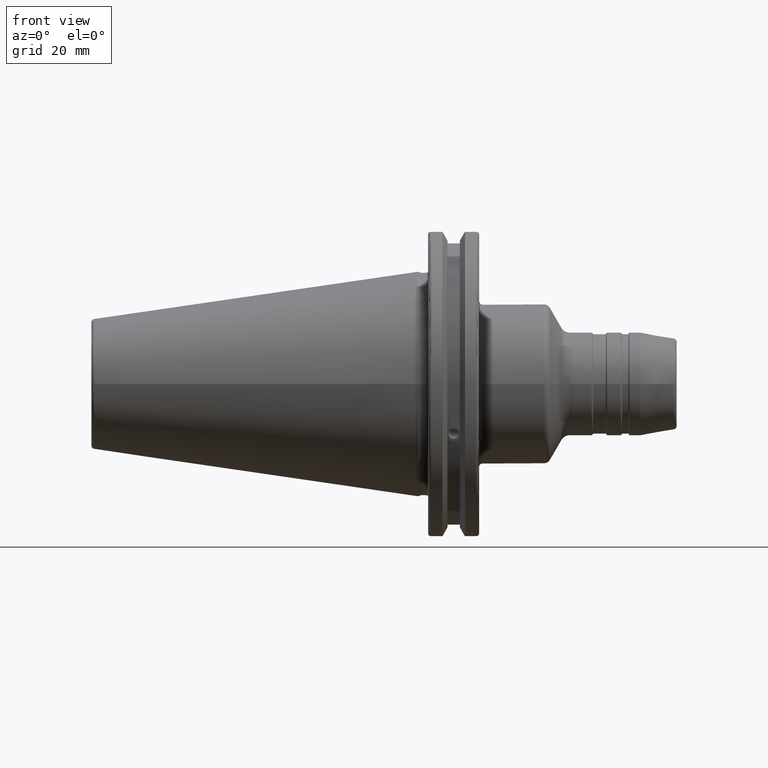
[diagram: clean part render]
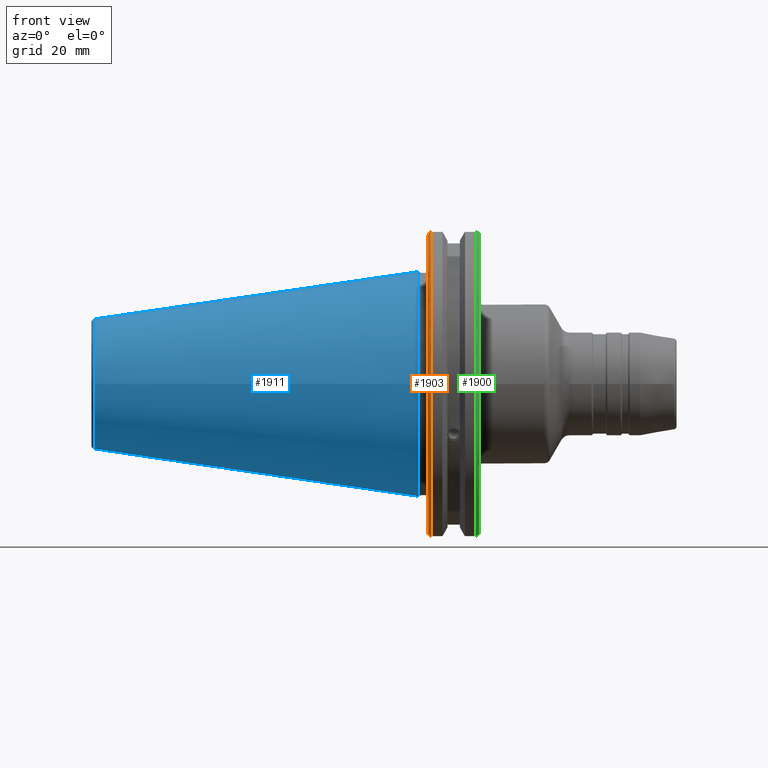
[diagram: same view with three faces highlighted in distinct colors, each labeled with its STEP entity id]
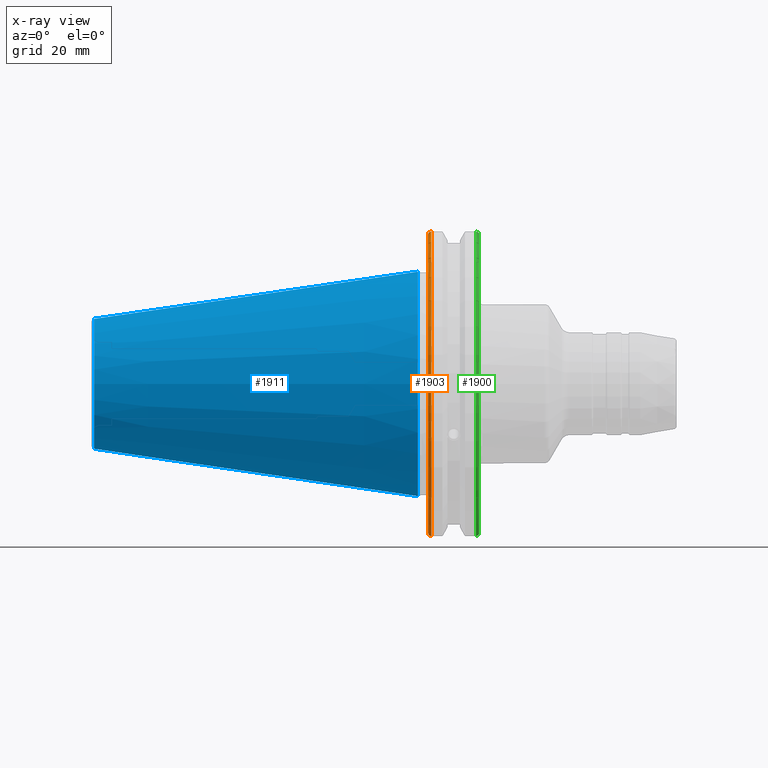
[diagram: x-ray of the same camera — body ghosted, the three highlighted faces saturated]
A machine part, front view with three faces highlighted in distinct colors.
The next image is the same camera in x-ray (body ghosted, the three faces saturated) — at least one of them is partly hidden behind the body in this view.
Their STEP definitions:

[orange] entity #1903 — the highlighted toroidal blend (fillet) surface has major radius 48.2125 mm and minor (blend) radius 1 mm.
#86=TOROIDAL_SURFACE('',#2145,48.2125,1.);
#140=B_SPLINE_CURVE_WITH_KNOTS('',3,(#3666,#3667,#3668,#3669,#3670,#3671),
 .UNSPECIFIED.,.F.,.F.,(4,2,4),(0.0976892167532858,0.112000071948292,0.150881870548587),
 .UNSPECIFIED.);
#141=B_SPLINE_CURVE_WITH_KNOTS('',3,(#3692,#3693,#3694,#3695,#3696,#3697),
 .UNSPECIFIED.,.F.,.F.,(4,2,4),(0.452859340315922,0.491741138916218,0.506051994111223),
 .UNSPECIFIED.);
#142=B_SPLINE_CURVE_WITH_KNOTS('',3,(#3701,#3702,#3703,#3704,#3705,#3706,
#3707,#3708),.UNSPECIFIED.,.F.,.F.,(4,2,2,4),(-0.104075769062722,-0.0730268503455485,
-0.034363987365627,0.),.UNSPECIFIED.);
#143=B_SPLINE_CURVE_WITH_KNOTS('',3,(#3711,#3712,#3713,#3714,#3715,#3716,
#3717,#3718),.UNSPECIFIED.,.F.,.F.,(4,2,2,4),(0.,0.0343639873656262,0.073026850345548,
0.104075769062723),.UNSPECIFIED.);
#237=FACE_OUTER_BOUND('',#362,.T.);
#362=EDGE_LOOP('',(#1633,#1634,#1635,#1636,#1637,#1638));
#714=CIRCLE('',#2133,48.2125);
#719=CIRCLE('',#2146,49.2125);
#879=VERTEX_POINT('',#3544);
#880=VERTEX_POINT('',#3545);
#905=VERTEX_POINT('',#3665);
#911=VERTEX_POINT('',#3690);
#912=VERTEX_POINT('',#3700);
#913=VERTEX_POINT('',#3709);
#1125=EDGE_CURVE('',#879,#880,#714,.T.);
#1159=EDGE_CURVE('',#905,#879,#140,.T.);
#1169=EDGE_CURVE('',#880,#911,#141,.T.);
#1171=EDGE_CURVE('',#911,#912,#142,.T.);
#1172=EDGE_CURVE('',#912,#913,#719,.T.);
#1173=EDGE_CURVE('',#913,#905,#143,.T.);
#1633=ORIENTED_EDGE('',*,*,#1171,.T.);
#1634=ORIENTED_EDGE('',*,*,#1172,.T.);
#1635=ORIENTED_EDGE('',*,*,#1173,.T.);
#1636=ORIENTED_EDGE('',*,*,#1159,.T.);
#1637=ORIENTED_EDGE('',*,*,#1125,.T.);
#1638=ORIENTED_EDGE('',*,*,#1169,.T.);
#1903=ADVANCED_FACE('',(#237),#86,.T.);
#2133=AXIS2_PLACEMENT_3D('',#3546,#2601,#2602);
#2145=AXIS2_PLACEMENT_3D('',#3699,#2652,#2653);
#2146=AXIS2_PLACEMENT_3D('',#3710,#2654,#2655);
#2601=DIRECTION('center_axis',(1.,0.,0.));
#2602=DIRECTION('ref_axis',(0.,-1.,1.60812264967664E-16));
#2652=DIRECTION('center_axis',(1.,0.,0.));
#2653=DIRECTION('ref_axis',(0.,0.,-1.));
#2654=DIRECTION('center_axis',(-1.,0.,0.));
#2655=DIRECTION('ref_axis',(0.,-1.,1.60812264967664E-16));
#3544=CARTESIAN_POINT('',(3.175,-12.95,46.4407434937254));
#3545=CARTESIAN_POINT('',(3.175,-12.95,-46.4407434937254));
#3546=CARTESIAN_POINT('Origin',(3.175,0.,0.));
#3665=CARTESIAN_POINT('',(3.31949794294344,-12.95,46.9780755322918));
#3666=CARTESIAN_POINT('Ctrl Pts',(3.31949794294344,-12.95,46.9780755322918));
#3667=CARTESIAN_POINT('Ctrl Pts',(3.29341556483839,-12.95,46.9333752207329));
#3668=CARTESIAN_POINT('Ctrl Pts',(3.27115672912336,-12.95,46.887363294568));
#3669=CARTESIAN_POINT('Ctrl Pts',(3.20453530071253,-12.95,46.7230464903732));
#3670=CARTESIAN_POINT('Ctrl Pts',(3.175,-12.95,46.5703494890597));
#3671=CARTESIAN_POINT('Ctrl Pts',(3.175,-12.95,46.4407434937254));
#3690=CARTESIAN_POINT('',(3.31949794294343,-12.95,-46.9780755322917));
#3692=CARTESIAN_POINT('Ctrl Pts',(3.175,-12.95,-46.4407434937254));
#3693=CARTESIAN_POINT('Ctrl Pts',(3.175,-12.95,-46.5703494890597));
#3694=CARTESIAN_POINT('Ctrl Pts',(3.20453530071253,-12.95,-46.7230464903732));
#3695=CARTESIAN_POINT('Ctrl Pts',(3.27115672912336,-12.95,-46.887363294568));
#3696=CARTESIAN_POINT('Ctrl Pts',(3.29341556483838,-12.95,-46.9333752207329));
#3697=CARTESIAN_POINT('Ctrl Pts',(3.31949794294343,-12.95,-46.9780755322917));
#3699=CARTESIAN_POINT('Origin',(4.175,0.,0.));
#3700=CARTESIAN_POINT('',(4.175,-13.4317035994433,-47.3440544806494));
#3701=CARTESIAN_POINT('Ctrl Pts',(3.31949794294343,-12.95,-46.9780755322917));
#3702=CARTESIAN_POINT('Ctrl Pts',(3.36785032278753,-13.0300321736484,-47.0388807469102));
#3703=CARTESIAN_POINT('Ctrl Pts',(3.43235971798504,-13.1083611826073,-47.0983919657547));
#3704=CARTESIAN_POINT('Ctrl Pts',(3.58507512107923,-13.2478194810696,-47.2043467509586));
#3705=CARTESIAN_POINT('Ctrl Pts',(3.70638116490964,-13.3242014686233,-47.2623787015413));
#3706=CARTESIAN_POINT('Ctrl Pts',(3.92661103245834,-13.4067722493645,-47.3251126473446));
#3707=CARTESIAN_POINT('Ctrl Pts',(4.06045337544791,-13.4317035994434,-47.3440544806494));
#3708=CARTESIAN_POINT('Ctrl Pts',(4.175,-13.4317035994434,-47.3440544806494));
#3709=CARTESIAN_POINT('',(4.175,-13.4317035994433,47.3440544806494));
#3710=CARTESIAN_POINT('Origin',(4.175,0.,0.));
#3711=CARTESIAN_POINT('Ctrl Pts',(4.175,-13.4317035994433,47.3440544806494));
#3712=CARTESIAN_POINT('Ctrl Pts',(4.06045337544791,-13.4317035994433,47.3440544806494));
#3713=CARTESIAN_POINT('Ctrl Pts',(3.92661103245835,-13.4067722493645,47.3251126473446));
#3714=CARTESIAN_POINT('Ctrl Pts',(3.70638116490965,-13.3242014686233,47.2623787015413));
#3715=CARTESIAN_POINT('Ctrl Pts',(3.58507512107923,-13.2478194810695,47.2043467509586));
#3716=CARTESIAN_POINT('Ctrl Pts',(3.43235971798504,-13.1083611826073,47.0983919657547));
#3717=CARTESIAN_POINT('Ctrl Pts',(3.36785032278754,-13.0300321736484,47.0388807469102));
#3718=CARTESIAN_POINT('Ctrl Pts',(3.31949794294344,-12.95,46.9780755322918));

[blue] entity #1911 — the highlighted conical surface has half-angle 8.297 deg.
#160=CONICAL_SURFACE('',#2161,27.5166666666666,0.14481249823894);
#245=FACE_OUTER_BOUND('',#371,.T.);
#371=EDGE_LOOP('',(#1668,#1669,#1670,#1671,#1672));
#489=LINE('',#3780,#593);
#593=VECTOR('',#2691,27.5166666666666);
#722=CIRCLE('',#2155,20.233121911427);
#723=CIRCLE('',#2156,20.233121911427);
#727=CIRCLE('',#2162,34.925);
#920=VERTEX_POINT('',#3767);
#921=VERTEX_POINT('',#3768);
#924=VERTEX_POINT('',#3778);
#1185=EDGE_CURVE('',#920,#921,#722,.T.);
#1186=EDGE_CURVE('',#921,#920,#723,.T.);
#1190=EDGE_CURVE('',#924,#924,#727,.T.);
#1191=EDGE_CURVE('',#924,#921,#489,.T.);
#1668=ORIENTED_EDGE('',*,*,#1190,.F.);
#1669=ORIENTED_EDGE('',*,*,#1191,.T.);
#1670=ORIENTED_EDGE('',*,*,#1185,.F.);
#1671=ORIENTED_EDGE('',*,*,#1186,.F.);
#1672=ORIENTED_EDGE('',*,*,#1191,.F.);
#1911=ADVANCED_FACE('',(#245),#160,.T.);
#2155=AXIS2_PLACEMENT_3D('',#3769,#2675,#2676);
#2156=AXIS2_PLACEMENT_3D('',#3770,#2677,#2678);
#2161=AXIS2_PLACEMENT_3D('',#3777,#2687,#2688);
#2162=AXIS2_PLACEMENT_3D('',#3779,#2689,#2690);
#2675=DIRECTION('center_axis',(-1.,0.,0.));
#2676=DIRECTION('ref_axis',(0.,-1.,3.06161699786838E-17));
#2677=DIRECTION('center_axis',(-1.,0.,0.));
#2678=DIRECTION('ref_axis',(0.,-1.,3.06161699786838E-17));
#2687=DIRECTION('center_axis',(1.,0.,0.));
#2688=DIRECTION('ref_axis',(0.,1.,0.));
#2689=DIRECTION('center_axis',(1.,0.,0.));
#2690=DIRECTION('ref_axis',(0.,0.,-1.));
#2691=DIRECTION('',(-0.989532981063281,0.144306893071729,1.76724974695192E-17));
#3767=CARTESIAN_POINT('',(-100.744306893072,-2.47784279855872E-15,20.233121911427));
#3768=CARTESIAN_POINT('',(-100.744306893072,-20.233121911427,-2.47784279855872E-15));
#3769=CARTESIAN_POINT('Origin',(-100.744306893072,0.,-3.09730349819841E-15));
#3770=CARTESIAN_POINT('Origin',(-100.744306893072,0.,-3.09730349819841E-15));
#3777=CARTESIAN_POINT('Origin',(-50.8,0.,0.));
#3778=CARTESIAN_POINT('',(-8.88178419700125E-15,-34.925,-4.27707894602213E-15));
#3779=CARTESIAN_POINT('Origin',(0.,0.,0.));
#3780=CARTESIAN_POINT('',(-50.8,-27.5166666666666,-3.3698197756538E-15));

[green] entity #1900 — the highlighted toroidal blend (fillet) surface has major radius 48.2125 mm and minor (blend) radius 1 mm.
#85=TOROIDAL_SURFACE('',#2141,48.2125,1.);
#136=B_SPLINE_CURVE_WITH_KNOTS('',3,(#3631,#3632,#3633,#3634,#3635,#3636),
 .UNSPECIFIED.,.F.,.F.,(4,2,4),(0.097707143645253,0.112358403262293,0.150882178076498),
 .UNSPECIFIED.);
#137=B_SPLINE_CURVE_WITH_KNOTS('',3,(#3638,#3639,#3640,#3641,#3642,#3643),
 .UNSPECIFIED.,.F.,.F.,(4,2,4),(0.452859694247731,0.491383469061936,0.506034728678978),
 .UNSPECIFIED.);
#138=B_SPLINE_CURVE_WITH_KNOTS('',3,(#3645,#3646,#3647,#3648,#3649,#3650,
#3651,#3652),.UNSPECIFIED.,.F.,.F.,(4,2,2,4),(-0.104075769062722,-0.0730268503455477,
-0.0343639873656263,0.),.UNSPECIFIED.);
#139=B_SPLINE_CURVE_WITH_KNOTS('',3,(#3655,#3656,#3657,#3658,#3659,#3660,
#3661,#3662),.UNSPECIFIED.,.F.,.F.,(4,2,2,4),(0.,0.0364336453281818,0.0778720357014993,
0.104197480645881),.UNSPECIFIED.);
#234=FACE_OUTER_BOUND('',#359,.T.);
#359=EDGE_LOOP('',(#1603,#1604,#1605,#1606,#1607,#1608));
#674=CIRCLE('',#2055,48.2125);
#718=CIRCLE('',#2142,49.2125);
#801=VERTEX_POINT('',#3033);
#802=VERTEX_POINT('',#3035);
#901=VERTEX_POINT('',#3630);
#902=VERTEX_POINT('',#3637);
#903=VERTEX_POINT('',#3644);
#904=VERTEX_POINT('',#3653);
#1021=EDGE_CURVE('',#802,#801,#674,.T.);
#1153=EDGE_CURVE('',#901,#802,#136,.T.);
#1154=EDGE_CURVE('',#801,#902,#137,.T.);
#1155=EDGE_CURVE('',#902,#903,#138,.T.);
#1156=EDGE_CURVE('',#903,#904,#718,.T.);
#1157=EDGE_CURVE('',#904,#901,#139,.T.);
#1603=ORIENTED_EDGE('',*,*,#1153,.T.);
#1604=ORIENTED_EDGE('',*,*,#1021,.T.);
#1605=ORIENTED_EDGE('',*,*,#1154,.T.);
#1606=ORIENTED_EDGE('',*,*,#1155,.T.);
#1607=ORIENTED_EDGE('',*,*,#1156,.T.);
#1608=ORIENTED_EDGE('',*,*,#1157,.T.);
#1900=ADVANCED_FACE('',(#234),#85,.T.);
#2055=AXIS2_PLACEMENT_3D('',#3036,#2409,#2410);
#2141=AXIS2_PLACEMENT_3D('',#3629,#2635,#2636);
#2142=AXIS2_PLACEMENT_3D('',#3654,#2637,#2638);
#2409=DIRECTION('center_axis',(-1.,0.,0.));
#2410=DIRECTION('ref_axis',(0.,-1.,1.60812264967664E-16));
#2635=DIRECTION('center_axis',(1.,0.,0.));
#2636=DIRECTION('ref_axis',(0.,0.,-1.));
#2637=DIRECTION('center_axis',(1.,0.,0.));
#2638=DIRECTION('ref_axis',(0.,-1.,1.60812264967664E-16));
#3033=CARTESIAN_POINT('',(19.05,-12.95,46.4407434937254));
#3035=CARTESIAN_POINT('',(19.05,-12.95,-46.4407434937254));
#3036=CARTESIAN_POINT('Origin',(19.05,0.,0.));
#3629=CARTESIAN_POINT('Origin',(18.05,0.,0.));
#3630=CARTESIAN_POINT('',(18.9055020570566,-12.95,-46.9780755322917));
#3631=CARTESIAN_POINT('Ctrl Pts',(18.9055020570566,-12.95,-46.9780755322917));
#3632=CARTESIAN_POINT('Ctrl Pts',(18.9322353702005,-12.95,-46.9322596399785));
#3633=CARTESIAN_POINT('Ctrl Pts',(18.9549831813775,-12.95,-46.8849952622217));
#3634=CARTESIAN_POINT('Ctrl Pts',(19.0209992543299,-12.95,-46.7204975987179));
#3635=CARTESIAN_POINT('Ctrl Pts',(19.05,-12.95,-46.5691560764394));
#3636=CARTESIAN_POINT('Ctrl Pts',(19.05,-12.95,-46.4407434937254));
#3637=CARTESIAN_POINT('',(18.9055020570566,-12.95,46.9780755322918));
#3638=CARTESIAN_POINT('Ctrl Pts',(19.05,-12.95,46.4407434937254));
#3639=CARTESIAN_POINT('Ctrl Pts',(19.05,-12.95,46.5691560764394));
#3640=CARTESIAN_POINT('Ctrl Pts',(19.0209992543299,-12.95,46.7204975987179));
#3641=CARTESIAN_POINT('Ctrl Pts',(18.9549831813775,-12.95,46.8849952622217));
#3642=CARTESIAN_POINT('Ctrl Pts',(18.9322353702005,-12.95,46.9322596399785));
#3643=CARTESIAN_POINT('Ctrl Pts',(18.9055020570566,-12.95,46.9780755322918));
#3644=CARTESIAN_POINT('',(18.05,-13.4317035994433,47.3440544806494));
#3645=CARTESIAN_POINT('Ctrl Pts',(18.9055020570566,-12.95,46.9780755322918));
#3646=CARTESIAN_POINT('Ctrl Pts',(18.8571496772125,-13.0300321736484,47.0388807469102));
#3647=CARTESIAN_POINT('Ctrl Pts',(18.792640282015,-13.1083611826073,47.0983919657547));
#3648=CARTESIAN_POINT('Ctrl Pts',(18.6399248789208,-13.2478194810695,47.2043467509586));
#3649=CARTESIAN_POINT('Ctrl Pts',(18.5186188350904,-13.3242014686233,47.2623787015413));
#3650=CARTESIAN_POINT('Ctrl Pts',(18.2983889675417,-13.4067722493645,47.3251126473446));
#3651=CARTESIAN_POINT('Ctrl Pts',(18.1645466245521,-13.4317035994433,47.3440544806494));
#3652=CARTESIAN_POINT('Ctrl Pts',(18.05,-13.4317035994433,47.3440544806494));
#3653=CARTESIAN_POINT('',(18.05,-13.4317035994433,-47.3440544806494));
#3654=CARTESIAN_POINT('Origin',(18.05,0.,0.));
#3655=CARTESIAN_POINT('Ctrl Pts',(18.05,-13.4317035994433,-47.3440544806494));
#3656=CARTESIAN_POINT('Ctrl Pts',(18.1714454844273,-13.4317035994433,-47.3440544806494));
#3657=CARTESIAN_POINT('Ctrl Pts',(18.3128758164404,-13.4037095171132,-47.3227857070233));
#3658=CARTESIAN_POINT('Ctrl Pts',(18.54495745946,-13.3111366376071,-47.2524525703658));
#3659=CARTESIAN_POINT('Ctrl Pts',(18.6710431007969,-13.2254637570201,-47.1873617743322));
#3660=CARTESIAN_POINT('Ctrl Pts',(18.811782280389,-13.0847856162862,-47.0804802022157));
#3661=CARTESIAN_POINT('Ctrl Pts',(18.8641312352177,-13.0184763978125,-47.0301011349397));
#3662=CARTESIAN_POINT('Ctrl Pts',(18.9055020570566,-12.95,-46.9780755322917));